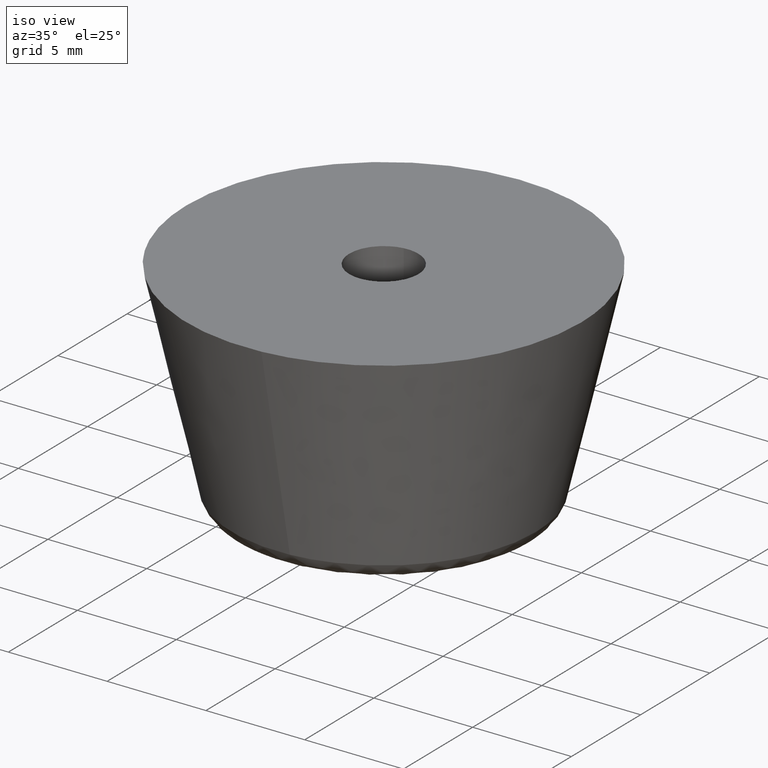
[diagram: clean part render]
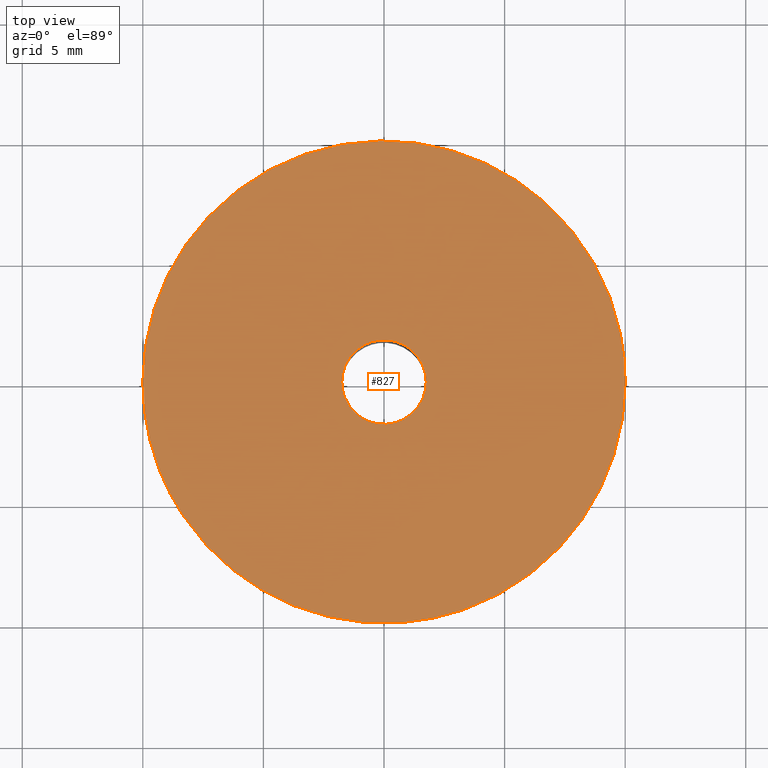
[diagram: tour spotlight — one face highlighted and labeled with its STEP entity id]
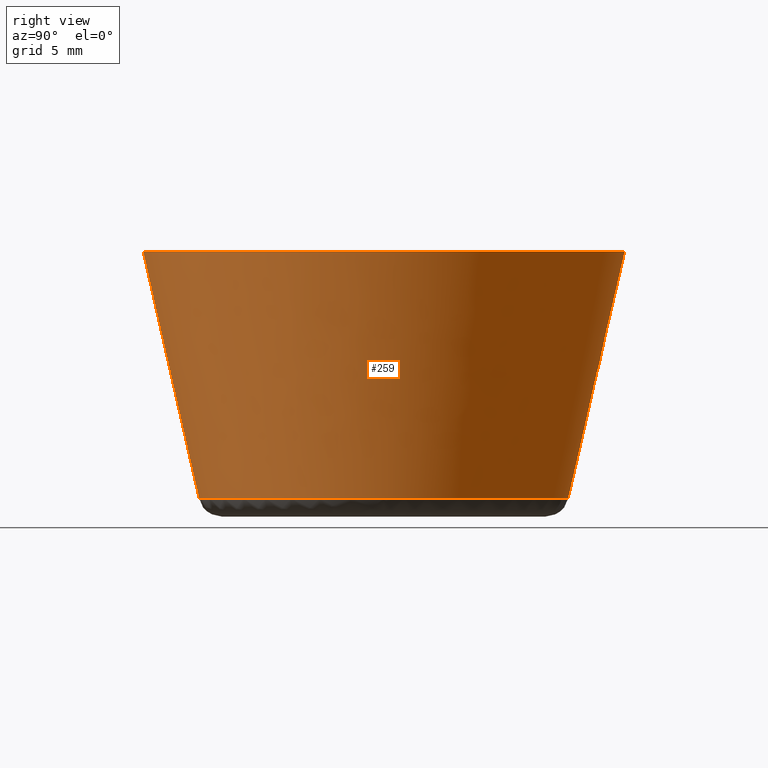
[diagram: tour spotlight — one face highlighted and labeled with its STEP entity id]
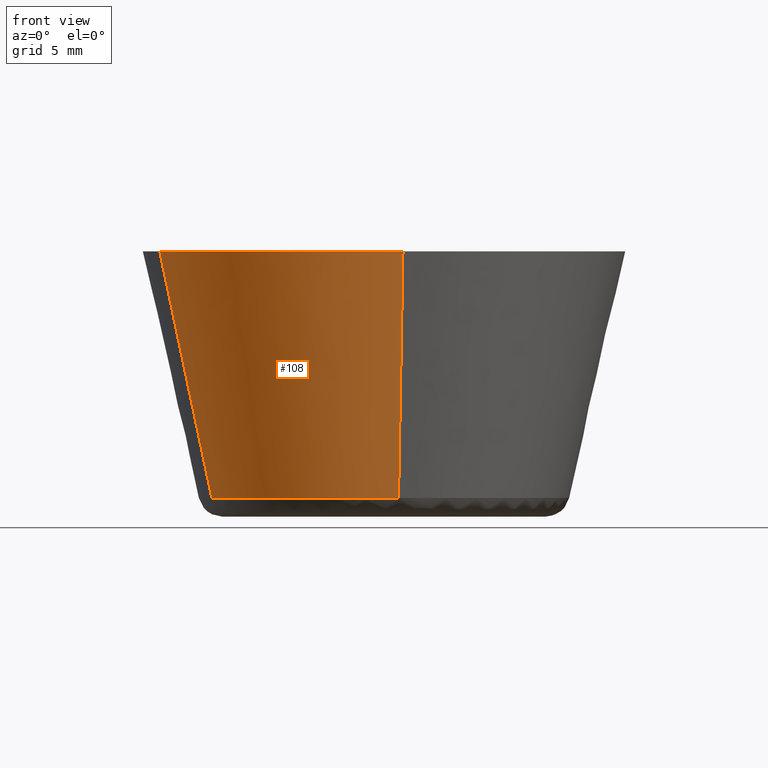
[diagram: tour spotlight — one face highlighted and labeled with its STEP entity id]
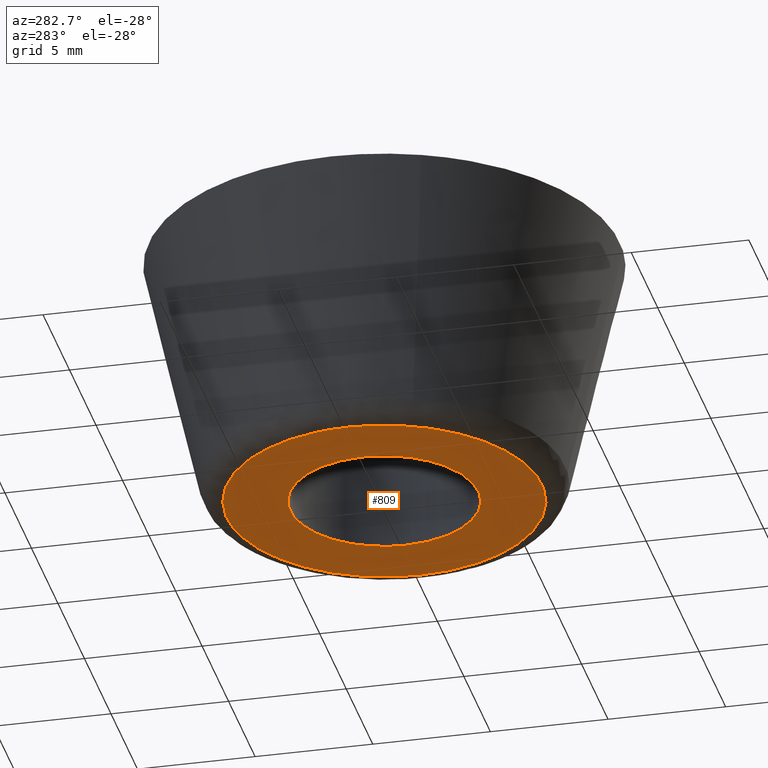
[diagram: tour spotlight — one face highlighted and labeled with its STEP entity id]
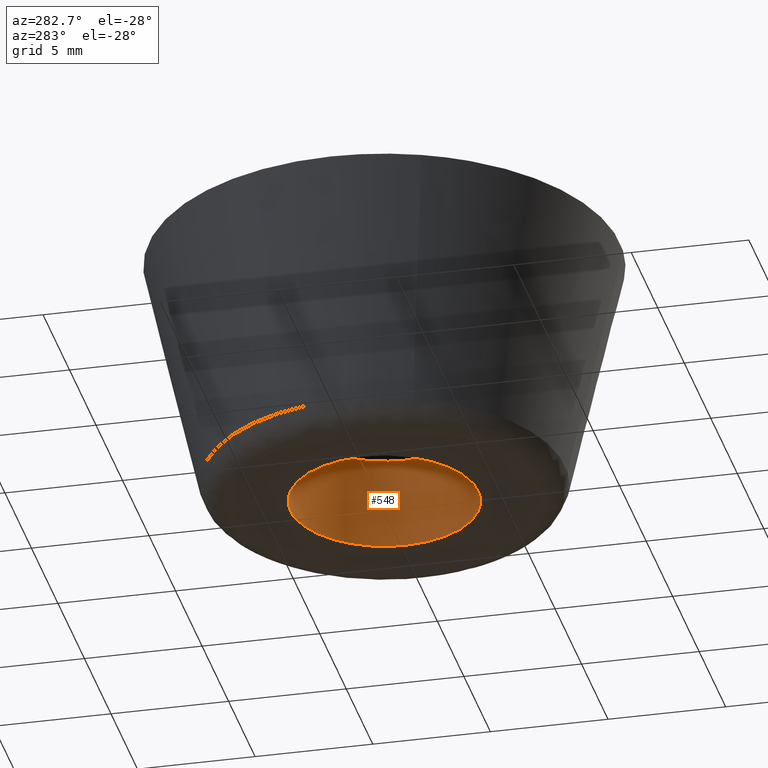
[diagram: tour spotlight — one face highlighted and labeled with its STEP entity id]
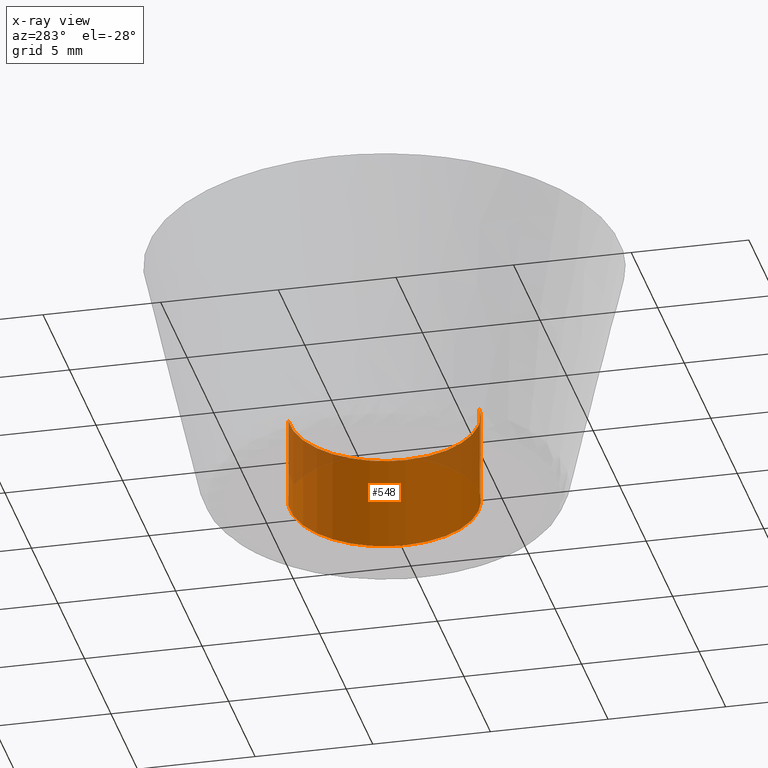
[diagram: x-ray of the same camera — body ghosted, this tour face saturated]
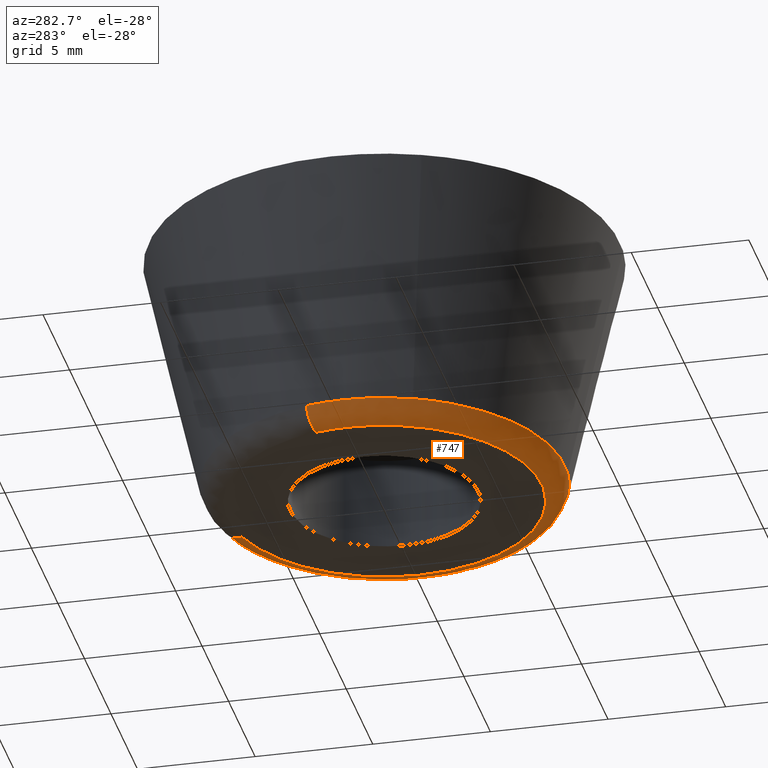
[diagram: tour spotlight — one face highlighted and labeled with its STEP entity id]
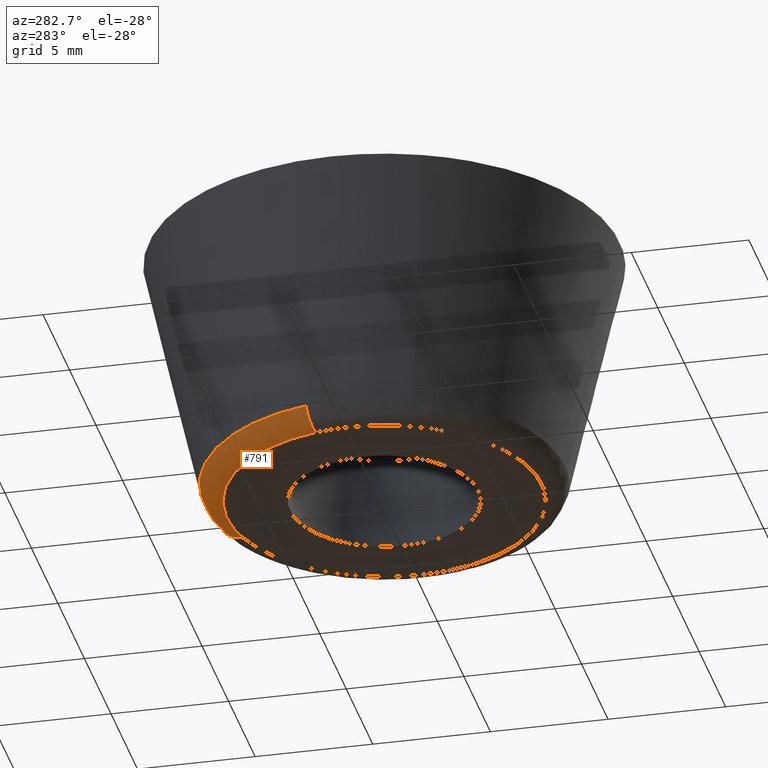
[diagram: tour spotlight — one face highlighted and labeled with its STEP entity id]
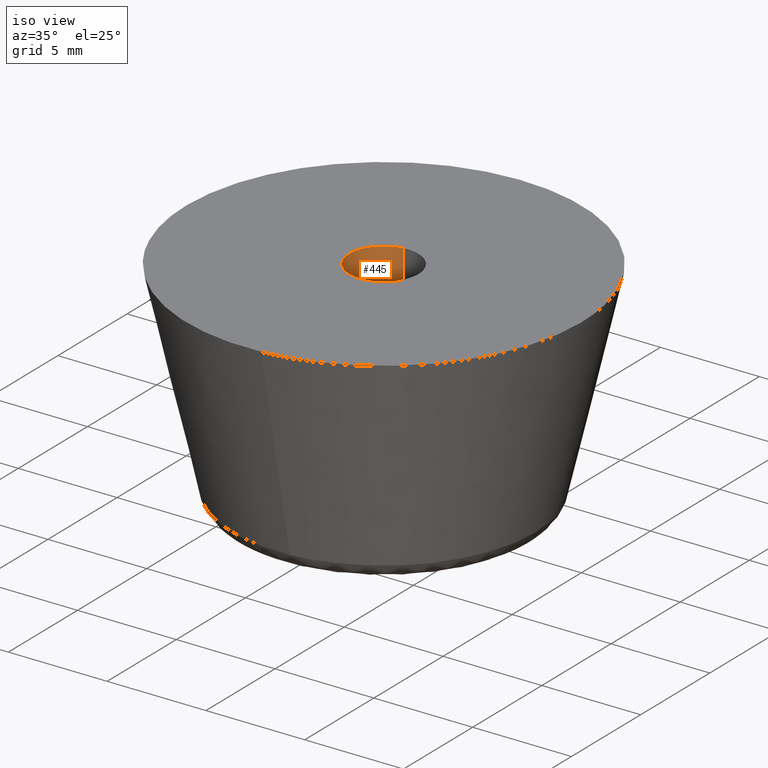
[diagram: tour spotlight — one face highlighted and labeled with its STEP entity id]
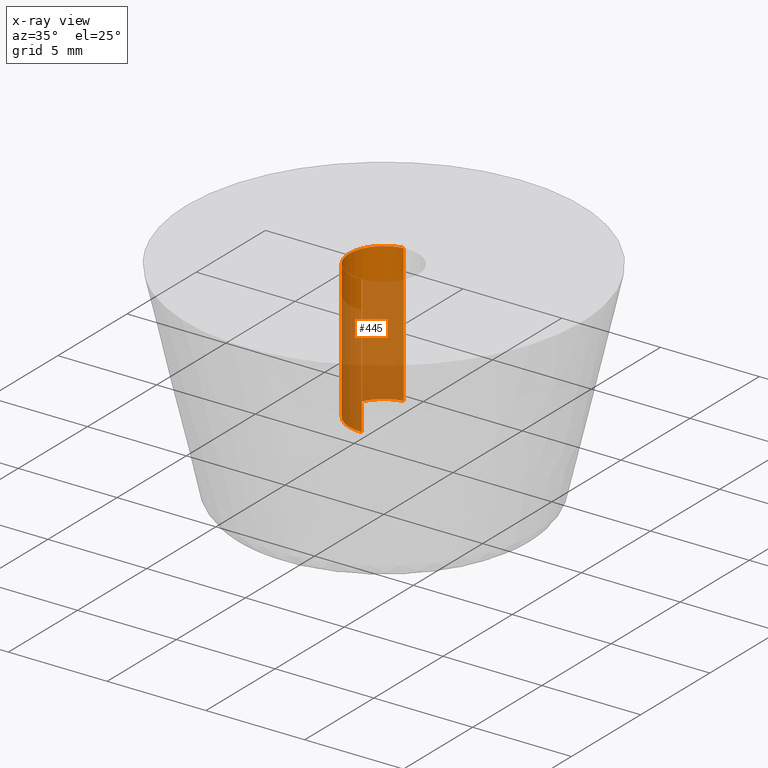
[diagram: x-ray of the same camera — body ghosted, this tour face saturated]
A machine part: a face-by-face anatomy tour. The part has 11 B-rep faces; the first image is the clean iso view, then the 8 largest visible faces are spotlighted one at a time (largest first), each with its STEP entity span.

Face 1 — top view, entity #827. In plain terms, the highlighted face is a freeform B-spline surface patch.
Definition (entity closure, byte-faithful):
#77=CARTESIAN_POINT('',(0.784585164633280,-9.969173024812191,10.999996629432401));
#78=VERTEX_POINT('',#77);
#84=CARTESIAN_POINT('',(-9.298644718206951,-3.679020202219316,10.999996313633289));
#85=VERTEX_POINT('',#84);
#86=CARTESIAN_POINT('',(0.784585164633280,-9.969173024812191,10.999996629432408));
#87=CARTESIAN_POINT('',(0.392898152715031,-9.999999248432170,10.999996621035162));
#88=CARTESIAN_POINT('',(-0.000000014250822,-9.999999261207327,10.999996612177069));
#89=CARTESIAN_POINT('',(-6.797741806568602,-9.999999482237174,10.999996458918394));
#90=CARTESIAN_POINT('',(-9.298644718206951,-3.679020202219316,10.999996313633289));
#98=(BOUNDED_CURVE()B_SPLINE_CURVE(2,(#86,#87,#88,#89,#90),.UNSPECIFIED.,.F.,.U.)B_SPLINE_CURVE_WITH_KNOTS((3,2,3),(0.736331399206468,0.750000000000000,0.937532605524618),.UNSPECIFIED.)CURVE()GEOMETRIC_REPRESENTATION_ITEM()RATIONAL_B_SPLINE_CURVE((0.969723561887701,0.983986238067625,1.0,0.780291886141685,0.890203252657364))REPRESENTATION_ITEM(''));
#99=EDGE_CURVE('',#78,#85,#98,.T.);
#151=CARTESIAN_POINT('',(-10.0,0.0,11.0));
#152=VERTEX_POINT('',#151);
#153=CARTESIAN_POINT('',(-9.298644718206951,-3.679020202219316,10.999996313633289));
#154=CARTESIAN_POINT('',(-9.999999610474514,-1.906361880967795,10.999998156816645));
#155=CARTESIAN_POINT('',(-10.0,0.0,11.0));
#163=(BOUNDED_CURVE()B_SPLINE_CURVE(2,(#153,#154,#155),.UNSPECIFIED.,.F.,.U.)B_SPLINE_CURVE_WITH_KNOTS((3,3),(0.937532605524618,1.0),.UNSPECIFIED.)CURVE()GEOMETRIC_REPRESENTATION_ITEM()RATIONAL_B_SPLINE_CURVE((0.890203252657364,0.926814895044862,1.0))REPRESENTATION_ITEM(''));
#164=EDGE_CURVE('',#85,#152,#163,.T.);
#166=CARTESIAN_POINT('',(10.0,0.0,11.0));
#167=VERTEX_POINT('',#166);
#168=CARTESIAN_POINT('',(-10.0,0.0,11.0));
#169=CARTESIAN_POINT('',(-10.000000000000002,10.000000000000002,11.0));
#170=CARTESIAN_POINT('',(0.0,10.0,11.0));
#171=CARTESIAN_POINT('',(10.000000000000002,10.000000000000002,11.0));
#172=CARTESIAN_POINT('',(10.0,0.0,11.0));
#180=(BOUNDED_CURVE()B_SPLINE_CURVE(2,(#168,#169,#170,#171,#172),.UNSPECIFIED.,.F.,.U.)B_SPLINE_CURVE_WITH_KNOTS((3,2,3),(0.0,0.250000000000000,0.500000000000000),.UNSPECIFIED.)CURVE()GEOMETRIC_REPRESENTATION_ITEM()RATIONAL_B_SPLINE_CURVE((1.0,0.707106781186548,1.0,0.707106781186548,1.0))REPRESENTATION_ITEM(''));
#181=EDGE_CURVE('',#152,#167,#180,.T.);
#183=CARTESIAN_POINT('',(10.0,0.0,11.0));
#184=CARTESIAN_POINT('',(9.999999969948828,-9.243909866674734,10.999998314716205));
#185=CARTESIAN_POINT('',(0.784585164633280,-9.969173024812191,10.999996629432408));
#193=(BOUNDED_CURVE()B_SPLINE_CURVE(2,(#183,#184,#185),.UNSPECIFIED.,.F.,.U.)B_SPLINE_CURVE_WITH_KNOTS((3,3),(0.500000000000000,0.736331399206468),.UNSPECIFIED.)CURVE()GEOMETRIC_REPRESENTATION_ITEM()RATIONAL_B_SPLINE_CURVE((1.0,0.723120543118922,0.969723561887701))REPRESENTATION_ITEM(''));
#194=EDGE_CURVE('',#167,#78,#193,.T.);
#282=CARTESIAN_POINT('',(-0.206558769951320,1.737766806724906,11.0));
#283=VERTEX_POINT('',#282);
#284=CARTESIAN_POINT('',(1.750000000000000,0.0,11.0));
#285=VERTEX_POINT('',#284);
#286=CARTESIAN_POINT('',(-0.206558769951320,1.737766806724906,10.999999999999996));
#287=CARTESIAN_POINT('',(-0.103641633012238,1.750000000000000,11.000000000000005));
#288=CARTESIAN_POINT('',(0.0,1.750000000000000,11.0));
#289=CARTESIAN_POINT('',(1.750000000000000,1.750000000000000,11.0));
#290=CARTESIAN_POINT('',(1.750000000000000,0.0,11.0));
#298=(BOUNDED_CURVE()B_SPLINE_CURVE(2,(#286,#287,#288,#289,#290),.UNSPECIFIED.,.F.,.U.)B_SPLINE_CURVE_WITH_KNOTS((3,2,3),(0.229562584452101,0.250000000000000,0.500000000000000),.UNSPECIFIED.)CURVE()GEOMETRIC_REPRESENTATION_ITEM()RATIONAL_B_SPLINE_CURVE((0.956026971627997,0.976056078303791,1.0,0.707106781186547,1.0))REPRESENTATION_ITEM(''));
#299=EDGE_CURVE('',#283,#285,#298,.T.);
#340=CARTESIAN_POINT('',(0.106834944207275,-1.746735897236966,11.0));
#341=VERTEX_POINT('',#340);
#347=CARTESIAN_POINT('',(1.750000000000000,0.0,11.0));
#348=CARTESIAN_POINT('',(1.749999999999999,-1.646235617044799,11.0));
#349=CARTESIAN_POINT('',(0.106834944207275,-1.746735897236966,11.0));
#357=(BOUNDED_CURVE()B_SPLINE_CURVE(2,(#347,#348,#349),.UNSPECIFIED.,.F.,.U.)B_SPLINE_CURVE_WITH_KNOTS((3,3),(0.500000000000000,0.739332962237766),.UNSPECIFIED.)CURVE()GEOMETRIC_REPRESENTATION_ITEM()RATIONAL_B_SPLINE_CURVE((1.0,0.719603993288089,0.976072041664195))REPRESENTATION_ITEM(''));
#358=EDGE_CURVE('',#285,#341,#357,.T.);
#381=CARTESIAN_POINT('',(-1.750000000000000,0.0,11.0));
#382=VERTEX_POINT('',#381);
#383=CARTESIAN_POINT('',(-1.750000000000000,0.0,11.0));
#384=CARTESIAN_POINT('',(-1.750000000000000,1.554306447868589,11.0));
#385=CARTESIAN_POINT('',(-0.206558769951320,1.737766806724906,10.999999999999996));
#393=(BOUNDED_CURVE()B_SPLINE_CURVE(2,(#383,#384,#385),.UNSPECIFIED.,.F.,.U.)B_SPLINE_CURVE_WITH_KNOTS((3,3),(0.0,0.229562584452101),.UNSPECIFIED.)CURVE()GEOMETRIC_REPRESENTATION_ITEM()RATIONAL_B_SPLINE_CURVE((1.0,0.731050702882756,0.956026971627997))REPRESENTATION_ITEM(''));
#394=EDGE_CURVE('',#382,#283,#393,.T.);
#396=CARTESIAN_POINT('',(0.106834944207275,-1.746735897236966,11.000000000000002));
#397=CARTESIAN_POINT('',(0.053467335793865,-1.750000000000000,10.999999999999998));
#398=CARTESIAN_POINT('',(0.0,-1.750000000000000,11.0));
#399=CARTESIAN_POINT('',(-1.750000000000000,-1.750000000000000,11.0));
#400=CARTESIAN_POINT('',(-1.750000000000000,0.0,11.0));
#408=(BOUNDED_CURVE()B_SPLINE_CURVE(2,(#396,#397,#398,#399,#400),.UNSPECIFIED.,.F.,.U.)B_SPLINE_CURVE_WITH_KNOTS((3,2,3),(0.739332962237765,0.750000000000000,1.0),.UNSPECIFIED.)CURVE()GEOMETRIC_REPRESENTATION_ITEM()RATIONAL_B_SPLINE_CURVE((0.976072041664193,0.987502787898457,1.0,0.707106781186547,1.0))REPRESENTATION_ITEM(''));
#409=EDGE_CURVE('',#341,#382,#408,.T.);
#810=CARTESIAN_POINT('',(10.998999961236120,-10.998790812537070,11.0));
#811=CARTESIAN_POINT('',(-10.999000497677921,-10.998790812537070,11.0));
#812=CARTESIAN_POINT('',(10.998999961236120,10.998990547701720,11.0));
#813=CARTESIAN_POINT('',(-10.999000497677921,10.998990547701720,11.0));
#814=B_SPLINE_SURFACE_WITH_KNOTS('',1,1,((#810,#812),(#811,#813)),.UNSPECIFIED.,.F.,.F.,.U.,(2,2),(2,2),(0.0,21.998000458914039),(0.0,21.997781360238790),.UNSPECIFIED.);
#815=ORIENTED_EDGE('',*,*,#164,.F.);
#816=ORIENTED_EDGE('',*,*,#99,.F.);
#817=ORIENTED_EDGE('',*,*,#194,.F.);
#818=ORIENTED_EDGE('',*,*,#181,.F.);
#819=EDGE_LOOP('',(#815,#816,#817,#818));
#820=FACE_OUTER_BOUND('',#819,.T.);
#821=ORIENTED_EDGE('',*,*,#358,.T.);
#822=ORIENTED_EDGE('',*,*,#409,.T.);
#823=ORIENTED_EDGE('',*,*,#394,.T.);
#824=ORIENTED_EDGE('',*,*,#299,.T.);
#825=EDGE_LOOP('',(#821,#822,#823,#824));
#826=FACE_BOUND('',#825,.T.);
#827=ADVANCED_FACE('',(#820,#826),#814,.F.);

Face 2 — right view, entity #259. In plain terms, the highlighted face is a freeform B-spline surface patch.
Definition (entity closure, byte-faithful):
#58=CARTESIAN_POINT('',(0.602315920521002,-7.653238590545548,0.778374839365564));
#59=VERTEX_POINT('',#58);
#60=CARTESIAN_POINT('',(-7.138480872367246,-2.824346497568236,0.778373954289063));
#61=VERTEX_POINT('',#60);
#77=CARTESIAN_POINT('',(0.784585164633280,-9.969173024812191,10.999996629432401));
#78=VERTEX_POINT('',#77);
#79=CARTESIAN_POINT('',(0.602315920521002,-7.653238590545548,0.778374839365564));
#80=CARTESIAN_POINT('',(0.784585164633280,-9.969173024812191,10.999996629432401));
#81=QUASI_UNIFORM_CURVE('',1,(#79,#80),.UNSPECIFIED.,.F.,.U.);
#82=EDGE_CURVE('',#59,#78,#81,.T.);
#84=CARTESIAN_POINT('',(-9.298644718206951,-3.679020202219316,10.999996313633289));
#85=VERTEX_POINT('',#84);
#101=CARTESIAN_POINT('',(-7.138480872367246,-2.824346497568236,0.778373954289063));
#102=CARTESIAN_POINT('',(-9.298644718206951,-3.679020202219316,10.999996313633289));
#103=QUASI_UNIFORM_CURVE('',1,(#101,#102),.UNSPECIFIED.,.F.,.U.);
#104=EDGE_CURVE('',#61,#85,#103,.T.);
#109=CARTESIAN_POINT('',(0.597766269238246,-7.595340601320430,0.522838368819185));
#110=CARTESIAN_POINT('',(8.193106870558676,-6.997574332082183,0.522838368819185));
#111=CARTESIAN_POINT('',(7.595340601320430,0.597766269238246,0.522838368819185));
#112=CARTESIAN_POINT('',(6.997574332082183,8.193106870558676,0.522838368819185));
#113=CARTESIAN_POINT('',(-0.597766269238246,7.595340601320430,0.522838368819185));
#114=CARTESIAN_POINT('',(-8.193106870558676,6.997574332082183,0.522838368819185));
#115=CARTESIAN_POINT('',(-7.595340601320430,-0.597766269238246,0.522838368819185));
#116=CARTESIAN_POINT('',(-7.505543491929934,-1.738746725870539,0.522838368819185));
#117=CARTESIAN_POINT('',(-7.084476056602727,-2.802984546180778,0.522838368819185));
#118=CARTESIAN_POINT('',(0.789261574479461,-10.028519155731550,11.261929040779521));
#119=CARTESIAN_POINT('',(10.817780730211009,-9.239257581252087,11.261929040779522));
#120=CARTESIAN_POINT('',(10.028519155731550,0.789261574479461,11.261929040779521));
#121=CARTESIAN_POINT('',(9.239257581252087,10.817780730211009,11.261929040779522));
#122=CARTESIAN_POINT('',(-0.789261574479461,10.028519155731550,11.261929040779521));
#123=CARTESIAN_POINT('',(-10.817780730211009,9.239257581252087,11.261929040779522));
#124=CARTESIAN_POINT('',(-10.028519155731550,-0.789261574479461,11.261929040779521));
#125=CARTESIAN_POINT('',(-9.909955410019428,-2.295756801785403,11.261929040779522));
#126=CARTESIAN_POINT('',(-9.353998401284420,-3.700924776132702,11.261929040779524));
#134=(BOUNDED_SURFACE()B_SPLINE_SURFACE(2,1,((#109,#118),(#110,#119),(#111,#120),(#112,#121),(#113,#122),(#114,#123),(#115,#124),(#116,#125),(#117,#126)),.UNSPECIFIED.,.F.,.F.,.U.)B_SPLINE_SURFACE_WITH_KNOTS((3,2,2,2,3),(2,2),(0.0,16.667173914078571,33.334347828157142,50.001521742235710,53.334956525051432),(0.0,11.012951320611620),.UNSPECIFIED.)GEOMETRIC_REPRESENTATION_ITEM()RATIONAL_B_SPLINE_SURFACE(((1.0,1.0),(0.707106781186548,0.707106781186548),(1.0,1.0),(0.707106781186548,0.707106781186548),(1.0,1.0),(0.707106781186548,0.707106781186548),(1.0,1.0),(0.941421356237310,0.941421356237310),(0.906274169979695,0.906274169979695)))REPRESENTATION_ITEM('')SURFACE());
#135=CARTESIAN_POINT('',(-7.676904294638870,0.0,0.778378896411031));
#136=VERTEX_POINT('',#135);
#137=CARTESIAN_POINT('',(-7.138480872367246,-2.824346497568236,0.778373954289063));
#138=CARTESIAN_POINT('',(-7.676903772421760,-1.463494610166388,0.778376425350047));
#139=CARTESIAN_POINT('',(-7.676904294638870,0.0,0.778378896411031));
#147=(BOUNDED_CURVE()B_SPLINE_CURVE(2,(#137,#138,#139),.UNSPECIFIED.,.F.,.U.)B_SPLINE_CURVE_WITH_KNOTS((3,3),(0.937532647958330,1.0),.UNSPECIFIED.)CURVE()GEOMETRIC_REPRESENTATION_ITEM()RATIONAL_B_SPLINE_CURVE((0.890203302397502,0.926814944759048,1.0))REPRESENTATION_ITEM(''));
#148=EDGE_CURVE('',#61,#136,#147,.T.);
#149=ORIENTED_EDGE('',*,*,#148,.F.);
#150=ORIENTED_EDGE('',*,*,#104,.T.);
#151=CARTESIAN_POINT('',(-10.0,0.0,11.0));
#152=VERTEX_POINT('',#151);
#153=CARTESIAN_POINT('',(-9.298644718206951,-3.679020202219316,10.999996313633289));
#154=CARTESIAN_POINT('',(-9.999999610474514,-1.906361880967795,10.999998156816645));
#155=CARTESIAN_POINT('',(-10.0,0.0,11.0));
#163=(BOUNDED_CURVE()B_SPLINE_CURVE(2,(#153,#154,#155),.UNSPECIFIED.,.F.,.U.)B_SPLINE_CURVE_WITH_KNOTS((3,3),(0.937532605524618,1.0),.UNSPECIFIED.)CURVE()GEOMETRIC_REPRESENTATION_ITEM()RATIONAL_B_SPLINE_CURVE((0.890203252657364,0.926814895044862,1.0))REPRESENTATION_ITEM(''));
#164=EDGE_CURVE('',#85,#152,#163,.T.);
#165=ORIENTED_EDGE('',*,*,#164,.T.);
#166=CARTESIAN_POINT('',(10.0,0.0,11.0));
#167=VERTEX_POINT('',#166);
#168=CARTESIAN_POINT('',(-10.0,0.0,11.0));
#169=CARTESIAN_POINT('',(-10.000000000000002,10.000000000000002,11.0));
#170=CARTESIAN_POINT('',(0.0,10.0,11.0));
#171=CARTESIAN_POINT('',(10.000000000000002,10.000000000000002,11.0));
#172=CARTESIAN_POINT('',(10.0,0.0,11.0));
#180=(BOUNDED_CURVE()B_SPLINE_CURVE(2,(#168,#169,#170,#171,#172),.UNSPECIFIED.,.F.,.U.)B_SPLINE_CURVE_WITH_KNOTS((3,2,3),(0.0,0.250000000000000,0.500000000000000),.UNSPECIFIED.)CURVE()GEOMETRIC_REPRESENTATION_ITEM()RATIONAL_B_SPLINE_CURVE((1.0,0.707106781186548,1.0,0.707106781186548,1.0))REPRESENTATION_ITEM(''));
#181=EDGE_CURVE('',#152,#167,#180,.T.);
#182=ORIENTED_EDGE('',*,*,#181,.T.);
#183=CARTESIAN_POINT('',(10.0,0.0,11.0));
#184=CARTESIAN_POINT('',(9.999999969948828,-9.243909866674734,10.999998314716205));
#185=CARTESIAN_POINT('',(0.784585164633280,-9.969173024812191,10.999996629432408));
#193=(BOUNDED_CURVE()B_SPLINE_CURVE(2,(#183,#184,#185),.UNSPECIFIED.,.F.,.U.)B_SPLINE_CURVE_WITH_KNOTS((3,3),(0.500000000000000,0.736331399206468),.UNSPECIFIED.)CURVE()GEOMETRIC_REPRESENTATION_ITEM()RATIONAL_B_SPLINE_CURVE((1.0,0.723120543118922,0.969723561887701))REPRESENTATION_ITEM(''));
#194=EDGE_CURVE('',#167,#78,#193,.T.);
#195=ORIENTED_EDGE('',*,*,#194,.T.);
#196=ORIENTED_EDGE('',*,*,#82,.F.);
#197=CARTESIAN_POINT('',(7.676904294638870,0.0,0.778378896411031));
#198=VERTEX_POINT('',#197);
#199=CARTESIAN_POINT('',(7.676904294638870,0.0,0.778378896411031));
#200=CARTESIAN_POINT('',(7.676904258467330,-7.096463364295250,0.778376867888297));
#201=CARTESIAN_POINT('',(0.602315920521002,-7.653238590545548,0.778374839365564));
#209=(BOUNDED_CURVE()B_SPLINE_CURVE(2,(#199,#200,#201),.UNSPECIFIED.,.F.,.U.)B_SPLINE_CURVE_WITH_KNOTS((3,3),(0.500000000000000,0.736331456889686),.UNSPECIFIED.)CURVE()GEOMETRIC_REPRESENTATION_ITEM()RATIONAL_B_SPLINE_CURVE((1.0,0.723120475538828,0.969723682268315))REPRESENTATION_ITEM(''));
#210=EDGE_CURVE('',#198,#59,#209,.T.);
#211=ORIENTED_EDGE('',*,*,#210,.F.);
#212=CARTESIAN_POINT('',(2.053971451337937,7.397030587171317,0.778379091688007));
#213=VERTEX_POINT('',#212);
#214=CARTESIAN_POINT('',(2.053971451337937,7.397030587171317,0.778379091688007));
#215=CARTESIAN_POINT('',(7.676904294638870,5.835681916575321,0.778378896411031));
#216=CARTESIAN_POINT('',(7.676904294638870,0.0,0.778378896411031));
#224=(BOUNDED_CURVE()B_SPLINE_CURVE(2,(#214,#215,#216),.UNSPECIFIED.,.F.,.U.)B_SPLINE_CURVE_WITH_KNOTS((3,3),(0.295601346399666,0.500000000000000),.UNSPECIFIED.)CURVE()GEOMETRIC_REPRESENTATION_ITEM()RATIONAL_B_SPLINE_CURVE((0.912639524049216,0.760532081703449,1.0))REPRESENTATION_ITEM(''));
#225=EDGE_CURVE('',#213,#198,#224,.T.);
#226=ORIENTED_EDGE('',*,*,#225,.F.);
#227=CARTESIAN_POINT('',(-7.502393854833222,1.627558292657501,0.778378896408961));
#228=VERTEX_POINT('',#227);
#229=CARTESIAN_POINT('',(-7.502393854833222,1.627558292657501,0.778378896408961));
#230=CARTESIAN_POINT('',(-6.190057627063485,7.676904294638870,0.778378896411031));
#231=CARTESIAN_POINT('',(0.0,7.676904294638870,0.778378896411031));
#232=CARTESIAN_POINT('',(1.046053491211817,7.676904294638871,0.778378896411031));
#233=CARTESIAN_POINT('',(2.053971451337937,7.397030587171317,0.778379091688007));
#241=(BOUNDED_CURVE()B_SPLINE_CURVE(2,(#229,#230,#231,#232,#233),.UNSPECIFIED.,.F.,.U.)B_SPLINE_CURVE_WITH_KNOTS((3,2,3),(0.036296741470876,0.250000000000000,0.295601346399666),.UNSPECIFIED.)CURVE()GEOMETRIC_REPRESENTATION_ITEM()RATIONAL_B_SPLINE_CURVE((0.927299386196110,0.749631058953926,1.0,0.946574699483098,0.912639524049216))REPRESENTATION_ITEM(''));
#242=EDGE_CURVE('',#228,#213,#241,.T.);
#243=ORIENTED_EDGE('',*,*,#242,.F.);
#244=CARTESIAN_POINT('',(-7.676904294638870,0.0,0.778378896411031));
#245=CARTESIAN_POINT('',(-7.676904294638870,0.823134846134899,0.778378896411031));
#246=CARTESIAN_POINT('',(-7.502393854833222,1.627558292657501,0.778378896408961));
#254=(BOUNDED_CURVE()B_SPLINE_CURVE(2,(#244,#245,#246),.UNSPECIFIED.,.F.,.U.)B_SPLINE_CURVE_WITH_KNOTS((3,3),(0.0,0.036296741470876),.UNSPECIFIED.)CURVE()GEOMETRIC_REPRESENTATION_ITEM()RATIONAL_B_SPLINE_CURVE((1.0,0.957475722232622,0.927299386196110))REPRESENTATION_ITEM(''));
#255=EDGE_CURVE('',#136,#228,#254,.T.);
#256=ORIENTED_EDGE('',*,*,#255,.F.);
#257=EDGE_LOOP('',(#149,#150,#165,#182,#195,#196,#211,#226,#243,#256));
#258=FACE_OUTER_BOUND('',#257,.T.);
#259=ADVANCED_FACE('',(#258),#134,.T.);

Face 3 — front view, entity #108. In plain terms, the highlighted face is a freeform B-spline surface patch.
Definition (entity closure, byte-faithful):
#44=CARTESIAN_POINT('',(-7.084476056602727,-2.802984546180778,0.522838368819185));
#45=CARTESIAN_POINT('',(-5.013641935347851,-8.036968004711026,0.522838368819185));
#46=CARTESIAN_POINT('',(0.597766269238246,-7.595340601320430,0.522838368819185));
#47=CARTESIAN_POINT('',(-9.353998401284420,-3.700924776132702,11.261929040779524));
#48=CARTESIAN_POINT('',(-6.619769517626898,-10.611622548596991,11.261929040779522));
#49=CARTESIAN_POINT('',(0.789261574479461,-10.028519155731550,11.261929040779521));
#57=(BOUNDED_SURFACE()B_SPLINE_SURFACE(2,1,((#44,#47),(#45,#48),(#46,#49)),.UNSPECIFIED.,.F.,.F.,.U.)B_SPLINE_SURFACE_WITH_KNOTS((3,3),(2,2),(0.0,13.242854546021700),(0.0,11.012951320611620),.UNSPECIFIED.)GEOMETRIC_REPRESENTATION_ITEM()RATIONAL_B_SPLINE_SURFACE(((0.906274169979695,0.906274169979695),(0.765685424949238,0.765685424949238),(1.0,1.0)))REPRESENTATION_ITEM('')SURFACE());
#58=CARTESIAN_POINT('',(0.602315920521002,-7.653238590545548,0.778374839365564));
#59=VERTEX_POINT('',#58);
#60=CARTESIAN_POINT('',(-7.138480872367246,-2.824346497568236,0.778373954289063));
#61=VERTEX_POINT('',#60);
#62=CARTESIAN_POINT('',(0.602315920521002,-7.653238590545548,0.778374839365564));
#63=CARTESIAN_POINT('',(0.301622844348439,-7.676903388876550,0.778374815831089));
#64=CARTESIAN_POINT('',(-0.000000011322381,-7.676903403069264,0.778374791004996));
#65=CARTESIAN_POINT('',(-5.218562611222694,-7.676903648626142,0.778374361473483));
#66=CARTESIAN_POINT('',(-7.138480872367246,-2.824346497568236,0.778373954289063));
#74=(BOUNDED_CURVE()B_SPLINE_CURVE(2,(#62,#63,#64,#65,#66),.UNSPECIFIED.,.F.,.U.)B_SPLINE_CURVE_WITH_KNOTS((3,2,3),(0.736331456889686,0.750000000000000,0.937532647958330),.UNSPECIFIED.)CURVE()GEOMETRIC_REPRESENTATION_ITEM()RATIONAL_B_SPLINE_CURVE((0.969723682268315,0.983986305647719,1.0,0.780291836427499,0.890203302397502))REPRESENTATION_ITEM(''));
#75=EDGE_CURVE('',#59,#61,#74,.T.);
#76=ORIENTED_EDGE('',*,*,#75,.F.);
#77=CARTESIAN_POINT('',(0.784585164633280,-9.969173024812191,10.999996629432401));
#78=VERTEX_POINT('',#77);
#79=CARTESIAN_POINT('',(0.602315920521002,-7.653238590545548,0.778374839365564));
#80=CARTESIAN_POINT('',(0.784585164633280,-9.969173024812191,10.999996629432401));
#81=QUASI_UNIFORM_CURVE('',1,(#79,#80),.UNSPECIFIED.,.F.,.U.);
#82=EDGE_CURVE('',#59,#78,#81,.T.);
#83=ORIENTED_EDGE('',*,*,#82,.T.);
#84=CARTESIAN_POINT('',(-9.298644718206951,-3.679020202219316,10.999996313633289));
#85=VERTEX_POINT('',#84);
#86=CARTESIAN_POINT('',(0.784585164633280,-9.969173024812191,10.999996629432408));
#87=CARTESIAN_POINT('',(0.392898152715031,-9.999999248432170,10.999996621035162));
#88=CARTESIAN_POINT('',(-0.000000014250822,-9.999999261207327,10.999996612177069));
#89=CARTESIAN_POINT('',(-6.797741806568602,-9.999999482237174,10.999996458918394));
#90=CARTESIAN_POINT('',(-9.298644718206951,-3.679020202219316,10.999996313633289));
#98=(BOUNDED_CURVE()B_SPLINE_CURVE(2,(#86,#87,#88,#89,#90),.UNSPECIFIED.,.F.,.U.)B_SPLINE_CURVE_WITH_KNOTS((3,2,3),(0.736331399206468,0.750000000000000,0.937532605524618),.UNSPECIFIED.)CURVE()GEOMETRIC_REPRESENTATION_ITEM()RATIONAL_B_SPLINE_CURVE((0.969723561887701,0.983986238067625,1.0,0.780291886141685,0.890203252657364))REPRESENTATION_ITEM(''));
#99=EDGE_CURVE('',#78,#85,#98,.T.);
#100=ORIENTED_EDGE('',*,*,#99,.T.);
#101=CARTESIAN_POINT('',(-7.138480872367246,-2.824346497568236,0.778373954289063));
#102=CARTESIAN_POINT('',(-9.298644718206951,-3.679020202219316,10.999996313633289));
#103=QUASI_UNIFORM_CURVE('',1,(#101,#102),.UNSPECIFIED.,.F.,.U.);
#104=EDGE_CURVE('',#61,#85,#103,.T.);
#105=ORIENTED_EDGE('',*,*,#104,.F.);
#106=EDGE_LOOP('',(#76,#83,#100,#105));
#107=FACE_OUTER_BOUND('',#106,.T.);
#108=ADVANCED_FACE('',(#107),#57,.T.);

Face 4 — auxiliary view, entity #809. In plain terms, the highlighted face is a freeform B-spline surface patch.
Definition (entity closure, byte-faithful):
#468=CARTESIAN_POINT('',(-0.472129948118010,3.972038936370151,6.601671E-016));
#469=VERTEX_POINT('',#468);
#470=CARTESIAN_POINT('',(4.0,0.0,0.0));
#471=VERTEX_POINT('',#470);
#472=CARTESIAN_POINT('',(-0.472129948118010,3.972038936370151,6.601671E-016));
#473=CARTESIAN_POINT('',(-0.236892946402667,4.0,0.0));
#474=CARTESIAN_POINT('',(0.0,4.0,0.0));
#475=CARTESIAN_POINT('',(4.000000000000000,4.000000000000000,0.0));
#476=CARTESIAN_POINT('',(4.0,0.0,0.0));
#484=(BOUNDED_CURVE()B_SPLINE_CURVE(2,(#472,#473,#474,#475,#476),.UNSPECIFIED.,.F.,.U.)B_SPLINE_CURVE_WITH_KNOTS((3,2,3),(0.229562770949563,0.250000000000000,0.500000000000000),.UNSPECIFIED.)CURVE()GEOMETRIC_REPRESENTATION_ITEM()RATIONAL_B_SPLINE_CURVE((0.956027337171368,0.976056296799159,1.0,0.707106781186548,1.0))REPRESENTATION_ITEM(''));
#485=EDGE_CURVE('',#469,#471,#484,.T.);
#487=CARTESIAN_POINT('',(0.244192892551057,-3.992539271093766,4.170275E-015));
#488=VERTEX_POINT('',#487);
#489=CARTESIAN_POINT('',(4.0,0.0,0.0));
#490=CARTESIAN_POINT('',(4.000000000000001,-3.762825462623270,0.0));
#491=CARTESIAN_POINT('',(0.244192892551057,-3.992539271093766,4.170275E-015));
#499=(BOUNDED_CURVE()B_SPLINE_CURVE(2,(#489,#490,#491),.UNSPECIFIED.,.F.,.U.)B_SPLINE_CURVE_WITH_KNOTS((3,3),(0.500000000000000,0.739333016937291),.UNSPECIFIED.)CURVE()GEOMETRIC_REPRESENTATION_ITEM()RATIONAL_B_SPLINE_CURVE((1.0,0.719603929203609,0.976072158895718))REPRESENTATION_ITEM(''));
#500=EDGE_CURVE('',#471,#488,#499,.T.);
#571=CARTESIAN_POINT('',(-4.0,0.0,0.0));
#572=VERTEX_POINT('',#571);
#573=CARTESIAN_POINT('',(-4.0,0.0,0.0));
#574=CARTESIAN_POINT('',(-4.000000000000000,3.552704400324676,0.0));
#575=CARTESIAN_POINT('',(-0.472129948118010,3.972038936370151,6.601671E-016));
#583=(BOUNDED_CURVE()B_SPLINE_CURVE(2,(#573,#574,#575),.UNSPECIFIED.,.F.,.U.)B_SPLINE_CURVE_WITH_KNOTS((3,3),(0.0,0.229562770949563),.UNSPECIFIED.)CURVE()GEOMETRIC_REPRESENTATION_ITEM()RATIONAL_B_SPLINE_CURVE((1.0,0.731050484387389,0.956027337171368))REPRESENTATION_ITEM(''));
#584=EDGE_CURVE('',#572,#469,#583,.T.);
#618=CARTESIAN_POINT('',(0.244192892551057,-3.992539271093766,4.170275E-015));
#619=CARTESIAN_POINT('',(0.122210418625892,-4.000000000000001,0.0));
#620=CARTESIAN_POINT('',(0.0,-4.0,0.0));
#621=CARTESIAN_POINT('',(-4.000000000000000,-4.000000000000000,0.0));
#622=CARTESIAN_POINT('',(-4.0,0.0,0.0));
#630=(BOUNDED_CURVE()B_SPLINE_CURVE(2,(#618,#619,#620,#621,#622),.UNSPECIFIED.,.F.,.U.)B_SPLINE_CURVE_WITH_KNOTS((3,2,3),(0.739333016937291,0.750000000000000,1.0),.UNSPECIFIED.)CURVE()GEOMETRIC_REPRESENTATION_ITEM()RATIONAL_B_SPLINE_CURVE((0.976072158895718,0.987502851982938,1.0,0.707106781186548,1.0))REPRESENTATION_ITEM(''));
#631=EDGE_CURVE('',#488,#572,#630,.T.);
#665=CARTESIAN_POINT('',(1.793074363771304,6.457447231766162,1.747510E-016));
#666=VERTEX_POINT('',#665);
#667=CARTESIAN_POINT('',(6.701771438847409,0.0,0.0));
#668=VERTEX_POINT('',#667);
#669=CARTESIAN_POINT('',(1.793074363771304,6.457447231766162,1.747510E-016));
#670=CARTESIAN_POINT('',(6.701771438847408,5.094422715675265,0.0));
#671=CARTESIAN_POINT('',(6.701771438847409,0.0,0.0));
#679=(BOUNDED_CURVE()B_SPLINE_CURVE(2,(#669,#670,#671),.UNSPECIFIED.,.F.,.U.)B_SPLINE_CURVE_WITH_KNOTS((3,3),(0.295601389208290,0.500000000000000),.UNSPECIFIED.)CURVE()GEOMETRIC_REPRESENTATION_ITEM()RATIONAL_B_SPLINE_CURVE((0.912639460335406,0.760532131856872,1.0))REPRESENTATION_ITEM(''));
#680=EDGE_CURVE('',#666,#668,#679,.T.);
#700=CARTESIAN_POINT('',(-6.549427598742756,1.420823194141429,1.708202E-016));
#701=VERTEX_POINT('',#700);
#715=CARTESIAN_POINT('',(-6.701771438847409,0.0,0.0));
#716=VERTEX_POINT('',#715);
#717=CARTESIAN_POINT('',(-6.701771438847409,0.0,0.0));
#718=CARTESIAN_POINT('',(-6.701771438847410,0.718578920677341,0.0));
#719=CARTESIAN_POINT('',(-6.549427598742756,1.420823194141429,1.708202E-016));
#727=(BOUNDED_CURVE()B_SPLINE_CURVE(2,(#717,#718,#719),.UNSPECIFIED.,.F.,.U.)B_SPLINE_CURVE_WITH_KNOTS((3,3),(0.0,0.036296741471115),.UNSPECIFIED.)CURVE()GEOMETRIC_REPRESENTATION_ITEM()RATIONAL_B_SPLINE_CURVE((1.0,0.957475722232342,0.927299386195712))REPRESENTATION_ITEM(''));
#728=EDGE_CURVE('',#716,#701,#727,.T.);
#730=CARTESIAN_POINT('',(6.701771438847409,0.0,0.0));
#731=CARTESIAN_POINT('',(6.701771438847408,-6.701771438847408,0.0));
#732=CARTESIAN_POINT('',(0.0,-6.701771438847409,0.0));
#733=CARTESIAN_POINT('',(-6.701771438847408,-6.701771438847408,0.0));
#734=CARTESIAN_POINT('',(-6.701771438847409,0.0,0.0));
#742=(BOUNDED_CURVE()B_SPLINE_CURVE(2,(#730,#731,#732,#733,#734),.UNSPECIFIED.,.F.,.U.)B_SPLINE_CURVE_WITH_KNOTS((3,2,3),(0.500000000000000,0.750000000000000,1.0),.UNSPECIFIED.)CURVE()GEOMETRIC_REPRESENTATION_ITEM()RATIONAL_B_SPLINE_CURVE((1.0,0.707106781186547,1.0,0.707106781186547,1.0))REPRESENTATION_ITEM(''));
#743=EDGE_CURVE('',#668,#716,#742,.T.);
#771=CARTESIAN_POINT('',(-6.549427598742756,1.420823194141429,1.708202E-016));
#772=CARTESIAN_POINT('',(-5.403786450585578,6.701771438847409,0.0));
#773=CARTESIAN_POINT('',(0.0,6.701771438847409,0.0));
#774=CARTESIAN_POINT('',(0.913182982927834,6.701771438847409,0.0));
#775=CARTESIAN_POINT('',(1.793074363771304,6.457447231766162,1.747510E-016));
#783=(BOUNDED_CURVE()B_SPLINE_CURVE(2,(#771,#772,#773,#774,#775),.UNSPECIFIED.,.F.,.U.)B_SPLINE_CURVE_WITH_KNOTS((3,2,3),(0.036296741471115,0.250000000000000,0.295601389208290),.UNSPECIFIED.)CURVE()GEOMETRIC_REPRESENTATION_ITEM()RATIONAL_B_SPLINE_CURVE((0.927299386195712,0.749631058954205,1.0,0.946574649329676,0.912639460335406))REPRESENTATION_ITEM(''));
#784=EDGE_CURVE('',#701,#666,#783,.T.);
#792=CARTESIAN_POINT('',(-7.371278205899857,-7.371278228411597,0.0));
#793=CARTESIAN_POINT('',(7.371277726551809,-7.371278228411597,0.0));
#794=CARTESIAN_POINT('',(-7.371278205899857,7.371278199124551,0.0));
#795=CARTESIAN_POINT('',(7.371277726551809,7.371278199124551,0.0));
#796=B_SPLINE_SURFACE_WITH_KNOTS('',1,1,((#792,#794),(#793,#795)),.UNSPECIFIED.,.F.,.F.,.U.,(2,2),(2,2),(0.0,14.742555932451671),(0.0,14.742556427536149),.UNSPECIFIED.);
#797=ORIENTED_EDGE('',*,*,#728,.T.);
#798=ORIENTED_EDGE('',*,*,#784,.T.);
#799=ORIENTED_EDGE('',*,*,#680,.T.);
#800=ORIENTED_EDGE('',*,*,#743,.T.);
#801=EDGE_LOOP('',(#797,#798,#799,#800));
#802=FACE_OUTER_BOUND('',#801,.T.);
#803=ORIENTED_EDGE('',*,*,#500,.F.);
#804=ORIENTED_EDGE('',*,*,#485,.F.);
#805=ORIENTED_EDGE('',*,*,#584,.F.);
#806=ORIENTED_EDGE('',*,*,#631,.F.);
#807=EDGE_LOOP('',(#803,#804,#805,#806));
#808=FACE_BOUND('',#807,.T.);
#809=ADVANCED_FACE('',(#802,#808),#796,.F.);

Face 5 — auxiliary view, entity #548. An x-ray twin of the same camera follows (body ghosted, this face saturated) — the face is partly hidden behind the body. In plain terms, the highlighted face is a freeform B-spline surface patch.
Definition (entity closure, byte-faithful):
#446=CARTESIAN_POINT('',(-0.472136938627034,3.972038105454666,4.100000000000103));
#447=CARTESIAN_POINT('',(-0.358458914551911,3.985550461794422,4.100000000000102));
#448=CARTESIAN_POINT('',(-0.244194158139428,3.992539193687467,4.100000000000102));
#449=CARTESIAN_POINT('',(3.748345035548039,4.236733351826894,4.100000000000102));
#450=CARTESIAN_POINT('',(3.992539193687467,0.244194158139428,4.100000000000102));
#451=CARTESIAN_POINT('',(4.236733351826894,-3.748345035548039,4.100000000000102));
#452=CARTESIAN_POINT('',(0.244194158139428,-3.992539193687467,4.100000000000102));
#453=CARTESIAN_POINT('',(-0.472136938627034,3.972038105454666,-0.102500000000003));
#454=CARTESIAN_POINT('',(-0.358458914551911,3.985550461794422,-0.102500000000003));
#455=CARTESIAN_POINT('',(-0.244194158139428,3.992539193687467,-0.102500000000003));
#456=CARTESIAN_POINT('',(3.748345035548039,4.236733351826894,-0.102500000000003));
#457=CARTESIAN_POINT('',(3.992539193687467,0.244194158139428,-0.102500000000003));
#458=CARTESIAN_POINT('',(4.236733351826894,-3.748345035548039,-0.102500000000003));
#459=CARTESIAN_POINT('',(0.244194158139428,-3.992539193687467,-0.102500000000003));
#467=(BOUNDED_SURFACE()B_SPLINE_SURFACE(2,1,((#446,#453),(#447,#454),(#448,#455),(#449,#456),(#450,#457),(#451,#458),(#452,#459)),.UNSPECIFIED.,.F.,.F.,.U.)B_SPLINE_SURFACE_WITH_KNOTS((3,2,2,3),(2,2),(0.0,0.265096679918781,6.892513677888299,13.519930675857820),(0.0,4.202500000000105),.UNSPECIFIED.)GEOMETRIC_REPRESENTATION_ITEM()RATIONAL_B_SPLINE_SURFACE(((0.977505800795127,0.977505800795127),(0.988284271247462,0.988284271247462),(1.0,1.0),(0.707106781186548,0.707106781186548),(1.0,1.0),(0.707106781186548,0.707106781186548),(1.0,1.0)))REPRESENTATION_ITEM('')SURFACE());
#468=CARTESIAN_POINT('',(-0.472129948118010,3.972038936370151,6.601671E-016));
#469=VERTEX_POINT('',#468);
#470=CARTESIAN_POINT('',(4.0,0.0,0.0));
#471=VERTEX_POINT('',#470);
#472=CARTESIAN_POINT('',(-0.472129948118010,3.972038936370151,6.601671E-016));
#473=CARTESIAN_POINT('',(-0.236892946402667,4.0,0.0));
#474=CARTESIAN_POINT('',(0.0,4.0,0.0));
#475=CARTESIAN_POINT('',(4.000000000000000,4.000000000000000,0.0));
#476=CARTESIAN_POINT('',(4.0,0.0,0.0));
#484=(BOUNDED_CURVE()B_SPLINE_CURVE(2,(#472,#473,#474,#475,#476),.UNSPECIFIED.,.F.,.U.)B_SPLINE_CURVE_WITH_KNOTS((3,2,3),(0.229562770949563,0.250000000000000,0.500000000000000),.UNSPECIFIED.)CURVE()GEOMETRIC_REPRESENTATION_ITEM()RATIONAL_B_SPLINE_CURVE((0.956027337171368,0.976056296799159,1.0,0.707106781186548,1.0))REPRESENTATION_ITEM(''));
#485=EDGE_CURVE('',#469,#471,#484,.T.);
#486=ORIENTED_EDGE('',*,*,#485,.T.);
#487=CARTESIAN_POINT('',(0.244192892551057,-3.992539271093766,4.170275E-015));
#488=VERTEX_POINT('',#487);
#489=CARTESIAN_POINT('',(4.0,0.0,0.0));
#490=CARTESIAN_POINT('',(4.000000000000001,-3.762825462623270,0.0));
#491=CARTESIAN_POINT('',(0.244192892551057,-3.992539271093766,4.170275E-015));
#499=(BOUNDED_CURVE()B_SPLINE_CURVE(2,(#489,#490,#491),.UNSPECIFIED.,.F.,.U.)B_SPLINE_CURVE_WITH_KNOTS((3,3),(0.500000000000000,0.739333016937291),.UNSPECIFIED.)CURVE()GEOMETRIC_REPRESENTATION_ITEM()RATIONAL_B_SPLINE_CURVE((1.0,0.719603929203609,0.976072158895718))REPRESENTATION_ITEM(''));
#500=EDGE_CURVE('',#471,#488,#499,.T.);
#501=ORIENTED_EDGE('',*,*,#500,.T.);
#502=CARTESIAN_POINT('',(0.244192908142875,-3.992539270140139,4.000000000000100));
#503=VERTEX_POINT('',#502);
#504=CARTESIAN_POINT('',(0.244192908142875,-3.992539270140139,4.000000000000100));
#505=CARTESIAN_POINT('',(0.244192892551057,-3.992539271093766,4.170275E-015));
#506=QUASI_UNIFORM_CURVE('',1,(#504,#505),.UNSPECIFIED.,.F.,.U.);
#507=EDGE_CURVE('',#503,#488,#506,.T.);
#508=ORIENTED_EDGE('',*,*,#507,.F.);
#509=CARTESIAN_POINT('',(4.0,0.0,4.000000000000100));
#510=VERTEX_POINT('',#509);
#511=CARTESIAN_POINT('',(4.0,0.0,4.000000000000100));
#512=CARTESIAN_POINT('',(4.0,-3.762825447901077,4.000000000000101));
#513=CARTESIAN_POINT('',(0.244192908142875,-3.992539270140139,4.000000000000100));
#521=(BOUNDED_CURVE()B_SPLINE_CURVE(2,(#511,#512,#513),.UNSPECIFIED.,.F.,.U.)B_SPLINE_CURVE_WITH_KNOTS((3,3),(0.500000000000000,0.739333016263454),.UNSPECIFIED.)CURVE()GEOMETRIC_REPRESENTATION_ITEM()RATIONAL_B_SPLINE_CURVE((1.0,0.719603929993058,0.976072157451557))REPRESENTATION_ITEM(''));
#522=EDGE_CURVE('',#510,#503,#521,.T.);
#523=ORIENTED_EDGE('',*,*,#522,.F.);
#524=CARTESIAN_POINT('',(-0.472130034368349,3.972038926118297,4.000000000000100));
#525=VERTEX_POINT('',#524);
#526=CARTESIAN_POINT('',(-0.472130034368349,3.972038926118297,4.000000000000099));
#527=CARTESIAN_POINT('',(-0.236892989983728,4.0,4.000000000000100));
#528=CARTESIAN_POINT('',(0.0,4.0,4.000000000000100));
#529=CARTESIAN_POINT('',(4.000000000000000,4.000000000000000,4.000000000000100));
#530=CARTESIAN_POINT('',(4.0,0.0,4.000000000000100));
#538=(BOUNDED_CURVE()B_SPLINE_CURVE(2,(#526,#527,#528,#529,#530),.UNSPECIFIED.,.F.,.U.)B_SPLINE_CURVE_WITH_KNOTS((3,2,3),(0.229562767279762,0.250000000000000,0.500000000000000),.UNSPECIFIED.)CURVE()GEOMETRIC_REPRESENTATION_ITEM()RATIONAL_B_SPLINE_CURVE((0.956027329978387,0.976056292499719,1.0,0.707106781186548,1.0))REPRESENTATION_ITEM(''));
#539=EDGE_CURVE('',#525,#510,#538,.T.);
#540=ORIENTED_EDGE('',*,*,#539,.F.);
#541=CARTESIAN_POINT('',(-0.472130034368349,3.972038926118297,4.000000000000100));
#542=CARTESIAN_POINT('',(-0.472129948118010,3.972038936370151,6.601671E-016));
#543=QUASI_UNIFORM_CURVE('',1,(#541,#542),.UNSPECIFIED.,.F.,.U.);
#544=EDGE_CURVE('',#525,#469,#543,.T.);
#545=ORIENTED_EDGE('',*,*,#544,.T.);
#546=EDGE_LOOP('',(#486,#501,#508,#523,#540,#545));
#547=FACE_OUTER_BOUND('',#546,.T.);
#548=ADVANCED_FACE('',(#547),#467,.F.);

Face 6 — auxiliary view, entity #747. In plain terms, the highlighted face is a freeform B-spline surface patch.
Definition (entity closure, byte-faithful):
#58=CARTESIAN_POINT('',(0.602315920521002,-7.653238590545548,0.778374839365564));
#59=VERTEX_POINT('',#58);
#60=CARTESIAN_POINT('',(-7.138480872367246,-2.824346497568236,0.778373954289063));
#61=VERTEX_POINT('',#60);
#62=CARTESIAN_POINT('',(0.602315920521002,-7.653238590545548,0.778374839365564));
#63=CARTESIAN_POINT('',(0.301622844348439,-7.676903388876550,0.778374815831089));
#64=CARTESIAN_POINT('',(-0.000000011322381,-7.676903403069264,0.778374791004996));
#65=CARTESIAN_POINT('',(-5.218562611222694,-7.676903648626142,0.778374361473483));
#66=CARTESIAN_POINT('',(-7.138480872367246,-2.824346497568236,0.778373954289063));
#74=(BOUNDED_CURVE()B_SPLINE_CURVE(2,(#62,#63,#64,#65,#66),.UNSPECIFIED.,.F.,.U.)B_SPLINE_CURVE_WITH_KNOTS((3,2,3),(0.736331456889686,0.750000000000000,0.937532647958330),.UNSPECIFIED.)CURVE()GEOMETRIC_REPRESENTATION_ITEM()RATIONAL_B_SPLINE_CURVE((0.969723682268315,0.983986305647719,1.0,0.780291836427499,0.890203302397502))REPRESENTATION_ITEM(''));
#75=EDGE_CURVE('',#59,#61,#74,.T.);
#135=CARTESIAN_POINT('',(-7.676904294638870,0.0,0.778378896411031));
#136=VERTEX_POINT('',#135);
#137=CARTESIAN_POINT('',(-7.138480872367246,-2.824346497568236,0.778373954289063));
#138=CARTESIAN_POINT('',(-7.676903772421760,-1.463494610166388,0.778376425350047));
#139=CARTESIAN_POINT('',(-7.676904294638870,0.0,0.778378896411031));
#147=(BOUNDED_CURVE()B_SPLINE_CURVE(2,(#137,#138,#139),.UNSPECIFIED.,.F.,.U.)B_SPLINE_CURVE_WITH_KNOTS((3,3),(0.937532647958330,1.0),.UNSPECIFIED.)CURVE()GEOMETRIC_REPRESENTATION_ITEM()RATIONAL_B_SPLINE_CURVE((0.890203302397502,0.926814944759048,1.0))REPRESENTATION_ITEM(''));
#148=EDGE_CURVE('',#61,#136,#147,.T.);
#197=CARTESIAN_POINT('',(7.676904294638870,0.0,0.778378896411031));
#198=VERTEX_POINT('',#197);
#199=CARTESIAN_POINT('',(7.676904294638870,0.0,0.778378896411031));
#200=CARTESIAN_POINT('',(7.676904258467330,-7.096463364295250,0.778376867888297));
#201=CARTESIAN_POINT('',(0.602315920521002,-7.653238590545548,0.778374839365564));
#209=(BOUNDED_CURVE()B_SPLINE_CURVE(2,(#199,#200,#201),.UNSPECIFIED.,.F.,.U.)B_SPLINE_CURVE_WITH_KNOTS((3,3),(0.500000000000000,0.736331456889686),.UNSPECIFIED.)CURVE()GEOMETRIC_REPRESENTATION_ITEM()RATIONAL_B_SPLINE_CURVE((1.0,0.723120475538828,0.969723682268315))REPRESENTATION_ITEM(''));
#210=EDGE_CURVE('',#198,#59,#209,.T.);
#212=CARTESIAN_POINT('',(2.053971451337937,7.397030587171317,0.778379091688007));
#213=VERTEX_POINT('',#212);
#214=CARTESIAN_POINT('',(2.053971451337937,7.397030587171317,0.778379091688007));
#215=CARTESIAN_POINT('',(7.676904294638870,5.835681916575321,0.778378896411031));
#216=CARTESIAN_POINT('',(7.676904294638870,0.0,0.778378896411031));
#224=(BOUNDED_CURVE()B_SPLINE_CURVE(2,(#214,#215,#216),.UNSPECIFIED.,.F.,.U.)B_SPLINE_CURVE_WITH_KNOTS((3,3),(0.295601346399666,0.500000000000000),.UNSPECIFIED.)CURVE()GEOMETRIC_REPRESENTATION_ITEM()RATIONAL_B_SPLINE_CURVE((0.912639524049216,0.760532081703449,1.0))REPRESENTATION_ITEM(''));
#225=EDGE_CURVE('',#213,#198,#224,.T.);
#227=CARTESIAN_POINT('',(-7.502393854833222,1.627558292657501,0.778378896408961));
#228=VERTEX_POINT('',#227);
#244=CARTESIAN_POINT('',(-7.676904294638870,0.0,0.778378896411031));
#245=CARTESIAN_POINT('',(-7.676904294638870,0.823134846134899,0.778378896411031));
#246=CARTESIAN_POINT('',(-7.502393854833222,1.627558292657501,0.778378896408961));
#254=(BOUNDED_CURVE()B_SPLINE_CURVE(2,(#244,#245,#246),.UNSPECIFIED.,.F.,.U.)B_SPLINE_CURVE_WITH_KNOTS((3,3),(0.0,0.036296741470876),.UNSPECIFIED.)CURVE()GEOMETRIC_REPRESENTATION_ITEM()RATIONAL_B_SPLINE_CURVE((1.0,0.957475722232622,0.927299386196110))REPRESENTATION_ITEM(''));
#255=EDGE_CURVE('',#136,#228,#254,.T.);
#636=CARTESIAN_POINT('',(2.057128842662169,7.408393772777198,0.838829570458776));
#637=CARTESIAN_POINT('',(9.053270986123808,5.465737073890075,0.838829570458776));
#638=CARTESIAN_POINT('',(7.513919494637295,-1.630058648008158,0.838829570458776));
#639=CARTESIAN_POINT('',(5.883860846629139,-9.143978142645453,0.838829570458776));
#640=CARTESIAN_POINT('',(-1.630058648008157,-7.513919494637295,0.838829570458776));
#641=CARTESIAN_POINT('',(-9.143978142645453,-5.883860846629140,0.838829570458776));
#642=CARTESIAN_POINT('',(-7.513919494637295,1.630058648008157,0.838829570458776));
#643=CARTESIAN_POINT('',(2.018125842072708,7.267931211223373,-0.053836066328935));
#644=CARTESIAN_POINT('',(8.881621682353718,5.362107130109358,-0.053836066328935));
#645=CARTESIAN_POINT('',(7.371456173720928,-1.599152864621813,-0.053836066328935));
#646=CARTESIAN_POINT('',(5.772303309099114,-8.970609038342740,-0.053836066328935));
#647=CARTESIAN_POINT('',(-1.599152864621812,-7.371456173720928,-0.053836066328935));
#648=CARTESIAN_POINT('',(-8.970609038342740,-5.772303309099114,-0.053836066328935));
#649=CARTESIAN_POINT('',(-7.371456173720928,1.599152864621812,-0.053836066328935));
#650=CARTESIAN_POINT('',(1.776587255935148,6.398071764252030,0.001900441242202));
#651=CARTESIAN_POINT('',(7.818628335238580,4.720345477825791,0.001900441242202));
#652=CARTESIAN_POINT('',(6.489206382921510,-1.407758892112210,0.001900441242202));
#653=CARTESIAN_POINT('',(5.081447490809299,-7.896965275033717,0.001900441242202));
#654=CARTESIAN_POINT('',(-1.407758892112210,-6.489206382921510,0.001900441242202));
#655=CARTESIAN_POINT('',(-7.896965275033717,-5.081447490809299,0.001900441242202));
#656=CARTESIAN_POINT('',(-6.489206382921510,1.407758892112210,0.001900441242202));
#664=(BOUNDED_SURFACE()B_SPLINE_SURFACE(2,2,((#636,#643,#650),(#637,#644,#651),(#638,#645,#652),(#639,#646,#653),(#640,#647,#654),(#641,#648,#655),(#642,#649,#656)),.UNSPECIFIED.,.F.,.F.,.U.)B_SPLINE_SURFACE_WITH_KNOTS((3,2,2,3),(3,3),(0.0,12.229489920938910,24.968541921916941,37.707593922894972),(0.0,1.540626332758419),.UNSPECIFIED.)GEOMETRIC_REPRESENTATION_ITEM()RATIONAL_B_SPLINE_SURFACE(((0.894460476240514,0.663024678325764,0.893545542278726),(0.657753973479767,0.487564434950672,0.657081164043439),(0.915043650393623,0.678282090793163,0.914107662125273),(0.647033570275023,0.479617865957235,0.646371726623362),(0.915043650393623,0.678282090793163,0.914107662125273),(0.647033570275023,0.479617865957235,0.646371726623362),(0.915043650393623,0.678282090793163,0.914107662125273)))REPRESENTATION_ITEM('')SURFACE());
#665=CARTESIAN_POINT('',(1.793074363771304,6.457447231766162,1.747510E-016));
#666=VERTEX_POINT('',#665);
#667=CARTESIAN_POINT('',(6.701771438847409,0.0,0.0));
#668=VERTEX_POINT('',#667);
#669=CARTESIAN_POINT('',(1.793074363771304,6.457447231766162,1.747510E-016));
#670=CARTESIAN_POINT('',(6.701771438847408,5.094422715675265,0.0));
#671=CARTESIAN_POINT('',(6.701771438847409,0.0,0.0));
#679=(BOUNDED_CURVE()B_SPLINE_CURVE(2,(#669,#670,#671),.UNSPECIFIED.,.F.,.U.)B_SPLINE_CURVE_WITH_KNOTS((3,3),(0.295601389208290,0.500000000000000),.UNSPECIFIED.)CURVE()GEOMETRIC_REPRESENTATION_ITEM()RATIONAL_B_SPLINE_CURVE((0.912639460335406,0.760532131856872,1.0))REPRESENTATION_ITEM(''));
#680=EDGE_CURVE('',#666,#668,#679,.T.);
#681=ORIENTED_EDGE('',*,*,#680,.F.);
#682=CARTESIAN_POINT('',(2.053971451337938,7.397030587171318,0.778379091688007));
#683=CARTESIAN_POINT('',(2.006641313719218,7.226575475007380,7.751506E-010));
#684=CARTESIAN_POINT('',(1.793074363771304,6.457447231766162,1.747510E-016));
#692=(BOUNDED_CURVE()B_SPLINE_CURVE(2,(#682,#683,#684),.UNSPECIFIED.,.F.,.U.)B_SPLINE_CURVE_WITH_KNOTS((3,3),(-1.694135516196938,-0.308882427894489),.UNSPECIFIED.)CURVE()GEOMETRIC_REPRESENTATION_ITEM()RATIONAL_B_SPLINE_CURVE((0.874392732592338,0.683050910624994,0.873560821664897))REPRESENTATION_ITEM(''));
#693=EDGE_CURVE('',#213,#666,#692,.T.);
#694=ORIENTED_EDGE('',*,*,#693,.F.);
#695=ORIENTED_EDGE('',*,*,#225,.T.);
#696=ORIENTED_EDGE('',*,*,#210,.T.);
#697=ORIENTED_EDGE('',*,*,#75,.T.);
#698=ORIENTED_EDGE('',*,*,#148,.T.);
#699=ORIENTED_EDGE('',*,*,#255,.T.);
#700=CARTESIAN_POINT('',(-6.549427598742756,1.420823194141429,1.708202E-016));
#701=VERTEX_POINT('',#700);
#702=CARTESIAN_POINT('',(-7.502393854833222,1.627558292657502,0.778378896408961));
#703=CARTESIAN_POINT('',(-7.329510926801240,1.590053324424042,1.944642E-010));
#704=CARTESIAN_POINT('',(-6.549427598742756,1.420823194141429,1.708202E-016));
#712=(BOUNDED_CURVE()B_SPLINE_CURVE(2,(#702,#703,#704),.UNSPECIFIED.,.F.,.U.)B_SPLINE_CURVE_WITH_KNOTS((3,3),(-1.694135293752581,-0.308882427087294),.UNSPECIFIED.)CURVE()GEOMETRIC_REPRESENTATION_ITEM()RATIONAL_B_SPLINE_CURVE((0.894514048335714,0.698769194566444,0.893663056706511))REPRESENTATION_ITEM(''));
#713=EDGE_CURVE('',#228,#701,#712,.T.);
#714=ORIENTED_EDGE('',*,*,#713,.T.);
#715=CARTESIAN_POINT('',(-6.701771438847409,0.0,0.0));
#716=VERTEX_POINT('',#715);
#717=CARTESIAN_POINT('',(-6.701771438847409,0.0,0.0));
#718=CARTESIAN_POINT('',(-6.701771438847410,0.718578920677341,0.0));
#719=CARTESIAN_POINT('',(-6.549427598742756,1.420823194141429,1.708202E-016));
#727=(BOUNDED_CURVE()B_SPLINE_CURVE(2,(#717,#718,#719),.UNSPECIFIED.,.F.,.U.)B_SPLINE_CURVE_WITH_KNOTS((3,3),(0.0,0.036296741471115),.UNSPECIFIED.)CURVE()GEOMETRIC_REPRESENTATION_ITEM()RATIONAL_B_SPLINE_CURVE((1.0,0.957475722232342,0.927299386195712))REPRESENTATION_ITEM(''));
#728=EDGE_CURVE('',#716,#701,#727,.T.);
#729=ORIENTED_EDGE('',*,*,#728,.F.);
#730=CARTESIAN_POINT('',(6.701771438847409,0.0,0.0));
#731=CARTESIAN_POINT('',(6.701771438847408,-6.701771438847408,0.0));
#732=CARTESIAN_POINT('',(0.0,-6.701771438847409,0.0));
#733=CARTESIAN_POINT('',(-6.701771438847408,-6.701771438847408,0.0));
#734=CARTESIAN_POINT('',(-6.701771438847409,0.0,0.0));
#742=(BOUNDED_CURVE()B_SPLINE_CURVE(2,(#730,#731,#732,#733,#734),.UNSPECIFIED.,.F.,.U.)B_SPLINE_CURVE_WITH_KNOTS((3,2,3),(0.500000000000000,0.750000000000000,1.0),.UNSPECIFIED.)CURVE()GEOMETRIC_REPRESENTATION_ITEM()RATIONAL_B_SPLINE_CURVE((1.0,0.707106781186547,1.0,0.707106781186547,1.0))REPRESENTATION_ITEM(''));
#743=EDGE_CURVE('',#668,#716,#742,.T.);
#744=ORIENTED_EDGE('',*,*,#743,.F.);
#745=EDGE_LOOP('',(#681,#694,#695,#696,#697,#698,#699,#714,#729,#744));
#746=FACE_OUTER_BOUND('',#745,.T.);
#747=ADVANCED_FACE('',(#746),#664,.T.);

Face 7 — auxiliary view, entity #791. In plain terms, the highlighted face is a freeform B-spline surface patch.
Definition (entity closure, byte-faithful):
#212=CARTESIAN_POINT('',(2.053971451337937,7.397030587171317,0.778379091688007));
#213=VERTEX_POINT('',#212);
#227=CARTESIAN_POINT('',(-7.502393854833222,1.627558292657501,0.778378896408961));
#228=VERTEX_POINT('',#227);
#229=CARTESIAN_POINT('',(-7.502393854833222,1.627558292657501,0.778378896408961));
#230=CARTESIAN_POINT('',(-6.190057627063485,7.676904294638870,0.778378896411031));
#231=CARTESIAN_POINT('',(0.0,7.676904294638870,0.778378896411031));
#232=CARTESIAN_POINT('',(1.046053491211817,7.676904294638871,0.778378896411031));
#233=CARTESIAN_POINT('',(2.053971451337937,7.397030587171317,0.778379091688007));
#241=(BOUNDED_CURVE()B_SPLINE_CURVE(2,(#229,#230,#231,#232,#233),.UNSPECIFIED.,.F.,.U.)B_SPLINE_CURVE_WITH_KNOTS((3,2,3),(0.036296741470876,0.250000000000000,0.295601346399666),.UNSPECIFIED.)CURVE()GEOMETRIC_REPRESENTATION_ITEM()RATIONAL_B_SPLINE_CURVE((0.927299386196110,0.749631058953926,1.0,0.946574699483098,0.912639524049216))REPRESENTATION_ITEM(''));
#242=EDGE_CURVE('',#228,#213,#241,.T.);
#665=CARTESIAN_POINT('',(1.793074363771304,6.457447231766162,1.747510E-016));
#666=VERTEX_POINT('',#665);
#682=CARTESIAN_POINT('',(2.053971451337938,7.397030587171318,0.778379091688007));
#683=CARTESIAN_POINT('',(2.006641313719218,7.226575475007380,7.751506E-010));
#684=CARTESIAN_POINT('',(1.793074363771304,6.457447231766162,1.747510E-016));
#692=(BOUNDED_CURVE()B_SPLINE_CURVE(2,(#682,#683,#684),.UNSPECIFIED.,.F.,.U.)B_SPLINE_CURVE_WITH_KNOTS((3,3),(-1.694135516196938,-0.308882427894489),.UNSPECIFIED.)CURVE()GEOMETRIC_REPRESENTATION_ITEM()RATIONAL_B_SPLINE_CURVE((0.874392732592338,0.683050910624994,0.873560821664897))REPRESENTATION_ITEM(''));
#693=EDGE_CURVE('',#213,#666,#692,.T.);
#700=CARTESIAN_POINT('',(-6.549427598742756,1.420823194141429,1.708202E-016));
#701=VERTEX_POINT('',#700);
#702=CARTESIAN_POINT('',(-7.502393854833222,1.627558292657502,0.778378896408961));
#703=CARTESIAN_POINT('',(-7.329510926801240,1.590053324424042,1.944642E-010));
#704=CARTESIAN_POINT('',(-6.549427598742756,1.420823194141429,1.708202E-016));
#712=(BOUNDED_CURVE()B_SPLINE_CURVE(2,(#702,#703,#704),.UNSPECIFIED.,.F.,.U.)B_SPLINE_CURVE_WITH_KNOTS((3,3),(-1.694135293752581,-0.308882427087294),.UNSPECIFIED.)CURVE()GEOMETRIC_REPRESENTATION_ITEM()RATIONAL_B_SPLINE_CURVE((0.894514048335714,0.698769194566444,0.893663056706511))REPRESENTATION_ITEM(''));
#713=EDGE_CURVE('',#228,#701,#712,.T.);
#748=CARTESIAN_POINT('',(-7.513919494637295,1.630058648008159,0.838829570458776));
#749=CARTESIAN_POINT('',(-5.883860846629137,9.143978142645453,0.838829570458776));
#750=CARTESIAN_POINT('',(1.630058648008158,7.513919494637295,0.838829570458776));
#751=CARTESIAN_POINT('',(1.845103588232311,7.467267961469692,0.838829570458776));
#752=CARTESIAN_POINT('',(2.057128433797306,7.408393886308909,0.838829570458776));
#753=CARTESIAN_POINT('',(-7.371456173720928,1.599152864621813,-0.053836066328935));
#754=CARTESIAN_POINT('',(-5.772303309099113,8.970609038342740,-0.053836066328935));
#755=CARTESIAN_POINT('',(1.599152864621813,7.371456173720928,-0.053836066328935));
#756=CARTESIAN_POINT('',(1.810120569742176,7.325689149942285,-0.053836066328935));
#757=CARTESIAN_POINT('',(2.018125440959892,7.267931322602530,-0.053836066328935));
#758=CARTESIAN_POINT('',(-6.489206382921508,1.407758892112211,0.001900441242202));
#759=CARTESIAN_POINT('',(-5.081447490809298,7.896965275033719,0.001900441242202));
#760=CARTESIAN_POINT('',(1.407758892112211,6.489206382921508,0.001900441242202));
#761=CARTESIAN_POINT('',(1.593477011625403,6.448916967121892,0.001900441242202));
#762=CARTESIAN_POINT('',(1.776586902829358,6.398071862300818,0.001900441242202));
#770=(BOUNDED_SURFACE()B_SPLINE_SURFACE(2,2,((#748,#753,#758),(#749,#754,#759),(#750,#755,#760),(#751,#756,#761),(#752,#757,#762)),.UNSPECIFIED.,.F.,.F.,.U.)B_SPLINE_SURFACE_WITH_KNOTS((3,2,3),(3,3),(0.0,12.739052000978029,13.248613595060890),(0.0,1.540626332758420),.UNSPECIFIED.)GEOMETRIC_REPRESENTATION_ITEM()RATIONAL_B_SPLINE_SURFACE(((0.915043650393623,0.678282090793163,0.914107662125273),(0.647033570275023,0.479617865957235,0.646371726623362),(0.915043650393623,0.678282090793163,0.914107662125273),(0.904323257412652,0.670335529378165,0.903398234918512),(0.894460495052258,0.663024692270092,0.893545561071228)))REPRESENTATION_ITEM('')SURFACE());
#771=CARTESIAN_POINT('',(-6.549427598742756,1.420823194141429,1.708202E-016));
#772=CARTESIAN_POINT('',(-5.403786450585578,6.701771438847409,0.0));
#773=CARTESIAN_POINT('',(0.0,6.701771438847409,0.0));
#774=CARTESIAN_POINT('',(0.913182982927834,6.701771438847409,0.0));
#775=CARTESIAN_POINT('',(1.793074363771304,6.457447231766162,1.747510E-016));
#783=(BOUNDED_CURVE()B_SPLINE_CURVE(2,(#771,#772,#773,#774,#775),.UNSPECIFIED.,.F.,.U.)B_SPLINE_CURVE_WITH_KNOTS((3,2,3),(0.036296741471115,0.250000000000000,0.295601389208290),.UNSPECIFIED.)CURVE()GEOMETRIC_REPRESENTATION_ITEM()RATIONAL_B_SPLINE_CURVE((0.927299386195712,0.749631058954205,1.0,0.946574649329676,0.912639460335406))REPRESENTATION_ITEM(''));
#784=EDGE_CURVE('',#701,#666,#783,.T.);
#785=ORIENTED_EDGE('',*,*,#784,.F.);
#786=ORIENTED_EDGE('',*,*,#713,.F.);
#787=ORIENTED_EDGE('',*,*,#242,.T.);
#788=ORIENTED_EDGE('',*,*,#693,.T.);
#789=EDGE_LOOP('',(#785,#786,#787,#788));
#790=FACE_OUTER_BOUND('',#789,.T.);
#791=ADVANCED_FACE('',(#790),#770,.T.);

Face 8 — iso view, entity #445. An x-ray twin of the same camera follows (body ghosted, this face saturated) — the face is partly hidden behind the body. In plain terms, the highlighted face is a freeform B-spline surface patch.
Definition (entity closure, byte-faithful):
#282=CARTESIAN_POINT('',(-0.206558769951320,1.737766806724906,11.0));
#283=VERTEX_POINT('',#282);
#301=CARTESIAN_POINT('',(-0.206558783665987,1.737766805094728,4.000000000000100));
#302=VERTEX_POINT('',#301);
#303=CARTESIAN_POINT('',(-0.206558769951320,1.737766806724906,11.0));
#304=CARTESIAN_POINT('',(-0.206558783665987,1.737766805094728,4.000000000000100));
#305=QUASI_UNIFORM_CURVE('',1,(#303,#304),.UNSPECIFIED.,.F.,.U.);
#306=EDGE_CURVE('',#283,#302,#305,.T.);
#325=CARTESIAN_POINT('',(0.106834944207275,-1.746735897236966,4.000000000000100));
#326=VERTEX_POINT('',#325);
#340=CARTESIAN_POINT('',(0.106834944207275,-1.746735897236966,11.0));
#341=VERTEX_POINT('',#340);
#342=CARTESIAN_POINT('',(0.106834944207275,-1.746735897236966,11.0));
#343=CARTESIAN_POINT('',(0.106834944207275,-1.746735897236966,4.000000000000100));
#344=QUASI_UNIFORM_CURVE('',1,(#342,#343),.UNSPECIFIED.,.F.,.U.);
#345=EDGE_CURVE('',#341,#326,#344,.T.);
#363=CARTESIAN_POINT('',(0.106834944186000,-1.746735897238267,11.175000000000001));
#364=CARTESIAN_POINT('',(-1.639900953052267,-1.853570841424267,11.174999999999999));
#365=CARTESIAN_POINT('',(-1.746735897238267,-0.106834944186000,11.175000000000001));
#366=CARTESIAN_POINT('',(-1.847625844281923,1.542701108969127,11.174999999999999));
#367=CARTESIAN_POINT('',(-0.206559910649327,1.737766671136416,11.174999999999999));
#368=CARTESIAN_POINT('',(0.106834944186000,-1.746735897238267,3.820625000000101));
#369=CARTESIAN_POINT('',(-1.639900953052267,-1.853570841424267,3.820625000000101));
#370=CARTESIAN_POINT('',(-1.746735897238267,-0.106834944186000,3.820625000000101));
#371=CARTESIAN_POINT('',(-1.847625844281923,1.542701108969127,3.820625000000101));
#372=CARTESIAN_POINT('',(-0.206559910649327,1.737766671136416,3.820625000000101));
#380=(BOUNDED_SURFACE()B_SPLINE_SURFACE(2,1,((#363,#368),(#364,#369),(#365,#370),(#366,#371),(#367,#372)),.UNSPECIFIED.,.F.,.F.,.U.)B_SPLINE_SURFACE_WITH_KNOTS((3,2,3),(2,2),(0.0,1.570796326794897,3.078760800517997),(0.0,7.354374999999898),.UNSPECIFIED.)GEOMETRIC_REPRESENTATION_ITEM()RATIONAL_B_SPLINE_SURFACE(((1.0,1.0),(0.707106781186548,0.707106781186548),(1.0,1.0),(0.718822509939086,0.718822509939086),(0.977505800795127,0.977505800795127)))REPRESENTATION_ITEM('')SURFACE());
#381=CARTESIAN_POINT('',(-1.750000000000000,0.0,11.0));
#382=VERTEX_POINT('',#381);
#383=CARTESIAN_POINT('',(-1.750000000000000,0.0,11.0));
#384=CARTESIAN_POINT('',(-1.750000000000000,1.554306447868589,11.0));
#385=CARTESIAN_POINT('',(-0.206558769951320,1.737766806724906,10.999999999999996));
#393=(BOUNDED_CURVE()B_SPLINE_CURVE(2,(#383,#384,#385),.UNSPECIFIED.,.F.,.U.)B_SPLINE_CURVE_WITH_KNOTS((3,3),(0.0,0.229562584452101),.UNSPECIFIED.)CURVE()GEOMETRIC_REPRESENTATION_ITEM()RATIONAL_B_SPLINE_CURVE((1.0,0.731050702882756,0.956026971627997))REPRESENTATION_ITEM(''));
#394=EDGE_CURVE('',#382,#283,#393,.T.);
#395=ORIENTED_EDGE('',*,*,#394,.F.);
#396=CARTESIAN_POINT('',(0.106834944207275,-1.746735897236966,11.000000000000002));
#397=CARTESIAN_POINT('',(0.053467335793865,-1.750000000000000,10.999999999999998));
#398=CARTESIAN_POINT('',(0.0,-1.750000000000000,11.0));
#399=CARTESIAN_POINT('',(-1.750000000000000,-1.750000000000000,11.0));
#400=CARTESIAN_POINT('',(-1.750000000000000,0.0,11.0));
#408=(BOUNDED_CURVE()B_SPLINE_CURVE(2,(#396,#397,#398,#399,#400),.UNSPECIFIED.,.F.,.U.)B_SPLINE_CURVE_WITH_KNOTS((3,2,3),(0.739332962237765,0.750000000000000,1.0),.UNSPECIFIED.)CURVE()GEOMETRIC_REPRESENTATION_ITEM()RATIONAL_B_SPLINE_CURVE((0.976072041664193,0.987502787898457,1.0,0.707106781186547,1.0))REPRESENTATION_ITEM(''));
#409=EDGE_CURVE('',#341,#382,#408,.T.);
#410=ORIENTED_EDGE('',*,*,#409,.F.);
#411=ORIENTED_EDGE('',*,*,#345,.T.);
#412=CARTESIAN_POINT('',(-1.750000000000000,0.0,4.000000000000100));
#413=VERTEX_POINT('',#412);
#414=CARTESIAN_POINT('',(0.106834944207275,-1.746735897236966,4.000000000000100));
#415=CARTESIAN_POINT('',(0.053467335793865,-1.750000000000000,4.000000000000100));
#416=CARTESIAN_POINT('',(0.0,-1.750000000000000,4.000000000000100));
#417=CARTESIAN_POINT('',(-1.750000000000000,-1.750000000000000,4.000000000000100));
#418=CARTESIAN_POINT('',(-1.750000000000000,0.0,4.000000000000100));
#426=(BOUNDED_CURVE()B_SPLINE_CURVE(2,(#414,#415,#416,#417,#418),.UNSPECIFIED.,.F.,.U.)B_SPLINE_CURVE_WITH_KNOTS((3,2,3),(0.739332962237765,0.750000000000000,1.0),.UNSPECIFIED.)CURVE()GEOMETRIC_REPRESENTATION_ITEM()RATIONAL_B_SPLINE_CURVE((0.976072041664193,0.987502787898457,1.0,0.707106781186547,1.0))REPRESENTATION_ITEM(''));
#427=EDGE_CURVE('',#326,#413,#426,.T.);
#428=ORIENTED_EDGE('',*,*,#427,.T.);
#429=CARTESIAN_POINT('',(-1.750000000000000,0.0,4.000000000000100));
#430=CARTESIAN_POINT('',(-1.750000000000000,1.554306435515460,4.000000000000099));
#431=CARTESIAN_POINT('',(-0.206558783665987,1.737766805094728,4.000000000000099));
#439=(BOUNDED_CURVE()B_SPLINE_CURVE(2,(#429,#430,#431),.UNSPECIFIED.,.F.,.U.)B_SPLINE_CURVE_WITH_KNOTS((3,3),(0.0,0.229562583118307),.UNSPECIFIED.)CURVE()GEOMETRIC_REPRESENTATION_ITEM()RATIONAL_B_SPLINE_CURVE((1.0,0.731050704445394,0.956026969013702))REPRESENTATION_ITEM(''));
#440=EDGE_CURVE('',#413,#302,#439,.T.);
#441=ORIENTED_EDGE('',*,*,#440,.T.);
#442=ORIENTED_EDGE('',*,*,#306,.F.);
#443=EDGE_LOOP('',(#395,#410,#411,#428,#441,#442));
#444=FACE_OUTER_BOUND('',#443,.T.);
#445=ADVANCED_FACE('',(#444),#380,.F.);